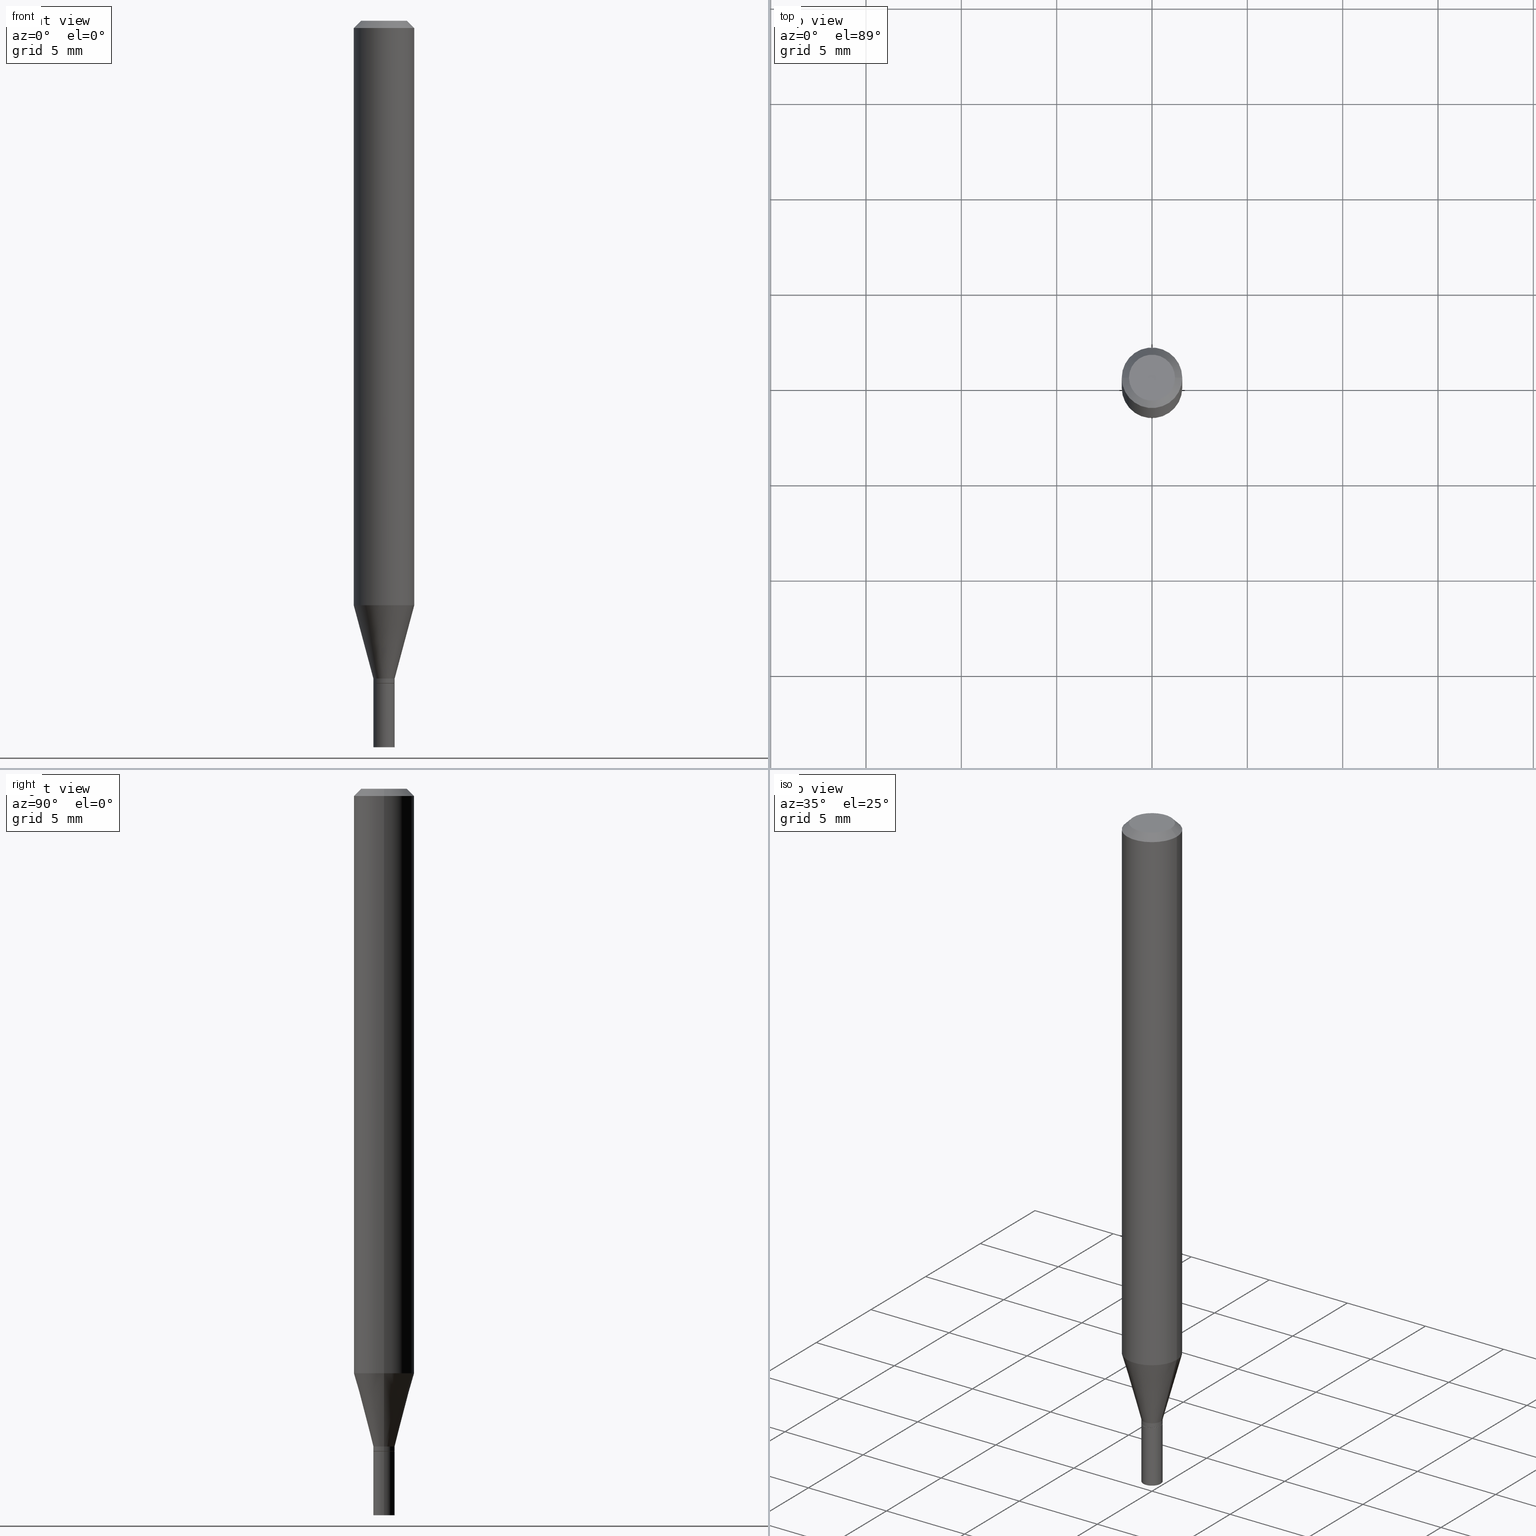
[diagram: canonical four-view strip — front | top / right | iso, engineering-drawing reading convention]
A machine part, canonical four-view strip (front | top / right | iso — engineering-drawing reading convention). The complete STEP part file that produces these views, byte-faithful:
ISO-10303-21;
HEADER;
FILE_DESCRIPTION (( 'STEP AP203' ),
    '1' );
FILE_NAME ('01195.STEP',
    '2024-03-19T23:53:40',
    ( '' ),
    ( '' ),
    'SwSTEP 2.0',
    'SolidWorks 2023',
    '' );
FILE_SCHEMA (( 'CONFIG_CONTROL_DESIGN' ));
ENDSEC;

DATA;
#1 = DIRECTION ( 'NONE',  ( 1.000000000000000000, -6.982962677686266711E-15, 4.876176775795935793E-29 ) ) ;
#2 = FACE_OUTER_BOUND ( 'NONE', #452, .T. ) ;
#3 = ADVANCED_FACE ( 'NONE', ( #244 ), #369, .T. ) ;
#4 = ADVANCED_FACE ( 'NONE', ( #29 ), #319, .F. ) ;
#5 = CARTESIAN_POINT ( 'NONE',  ( 3.345401326861266963E-29, -4.776346471537423880E-15, -1.368000000000000105 ) ) ;
#6 = VECTOR ( 'NONE', #28, 39.37007874015748143 ) ;
#7 = FACE_OUTER_BOUND ( 'NONE', #313, .T. ) ;
#8 = CONICAL_SURFACE ( 'NONE', #272, 0.02149999999999999481, 0.7853981633974739252 ) ;
#9 = APPROVAL_PERSON_ORGANIZATION ( #53, #327, #300 ) ;
#10 = CARTESIAN_POINT ( 'NONE',  ( 0.06250000000000000000, -4.888073874380388472E-16, -0.01499999999999999944 ) ) ;
#11 = ORIENTED_EDGE ( 'NONE', *, *, #126, .F. ) ;
#12 = EDGE_CURVE ( 'NONE', #271, #161, #192, .T. ) ;
#13 = CARTESIAN_POINT ( 'NONE',  ( 1.536251789091312887E-16, 0.02199999999999522129, -1.368000000000000105 ) ) ;
#14 = CALENDAR_DATE ( 2024, 19, 3 ) ;
#15 =( NAMED_UNIT ( * ) SI_UNIT ( $, .STERADIAN. ) SOLID_ANGLE_UNIT ( ) );
#16 = AXIS2_PLACEMENT_3D ( 'NONE', #71, #222, #46 ) ;
#17 = ORIENTED_EDGE ( 'NONE', *, *, #179, .T. ) ;
#18 = CC_DESIGN_APPROVAL ( #327, ( #21 ) ) ;
#19 = EDGE_LOOP ( 'NONE', ( #68, #251, #372, #337 ) ) ;
#20 = APPLICATION_CONTEXT ( 'configuration controlled 3d designs of mechanical parts and assemblies' ) ;
#21 = PRODUCT_DEFINITION ( 'UNKNOWN', '', #165, #257 ) ;
#22 = EDGE_LOOP ( 'NONE', ( #368, #181, #321, #311 ) ) ;
#23 =( CONVERSION_BASED_UNIT ( 'INCH', #270 ) LENGTH_UNIT ( ) NAMED_UNIT ( #188 ) );
#24 = CARTESIAN_POINT ( 'NONE',  ( 0.02149999999999999481, -4.926480169107677920E-15, -1.368000000000000105 ) ) ;
#25 =( LENGTH_UNIT ( ) NAMED_UNIT ( * ) SI_UNIT ( $, .METRE. ) );
#26 = DIRECTION ( 'NONE',  ( -2.445468806185136877E-29, 3.491481338843145188E-15, 1.000000000000000000 ) ) ;
#27 = EDGE_CURVE ( 'NONE', #249, #73, #166, .T. ) ;
#28 = DIRECTION ( 'NONE',  ( -2.445468806185136877E-29, 3.491481338843145188E-15, 1.000000000000000000 ) ) ;
#29 = FACE_OUTER_BOUND ( 'NONE', #446, .T. ) ;
#30 = DIRECTION ( 'NONE',  ( 1.000000000000000000, -6.982962677686270655E-15, 0.000000000000000000 ) ) ;
#31 = CYLINDRICAL_SURFACE ( 'NONE', #394, 0.02199999999999992240 ) ;
#32 = CARTESIAN_POINT ( 'NONE',  ( 3.320946638799415978E-29, -4.741431658148991442E-15, -1.358000000000000096 ) ) ;
#33 = DIRECTION ( 'NONE',  ( -2.445468806185136597E-29, 3.491481338843145583E-15, 1.000000000000000000 ) ) ;
#34 = VECTOR ( 'NONE', #167, 39.37007874015748143 ) ;
#35 = CC_DESIGN_APPROVAL ( #254, ( #165 ) ) ;
#36 = DIRECTION ( 'NONE',  ( 1.000000000000000000, -6.982962677686269866E-15, 0.000000000000000000 ) ) ;
#37 = EDGE_LOOP ( 'NONE', ( #147, #80, #215, #418 ) ) ;
#38 = EDGE_CURVE ( 'NONE', #217, #73, #295, .T. ) ;
#39 = DIRECTION ( 'NONE',  ( -2.445468806185136597E-29, 3.491481338843145583E-15, 1.000000000000000000 ) ) ;
#40 = CYLINDRICAL_SURFACE ( 'NONE', #89, 0.06250000000000000000 ) ;
#41 = EDGE_LOOP ( 'NONE', ( #130, #391, #304, #65 ) ) ;
#42 = ORIENTED_EDGE ( 'NONE', *, *, #38, .F. ) ;
#43 = AXIS2_PLACEMENT_3D ( 'NONE', #396, #78, #88 ) ;
#44 = CARTESIAN_POINT ( 'NONE',  ( 3.345401326861266963E-29, -4.776346471537423880E-15, -1.368000000000000105 ) ) ;
#45 = PERSON_AND_ORGANIZATION_ROLE ( 'design_owner' ) ;
#46 = DIRECTION ( 'NONE',  ( 1.000000000000000000, -6.982962677686245411E-15, 0.000000000000000000 ) ) ;
#47 = EDGE_CURVE ( 'NONE', #402, #105, #305, .T. ) ;
#48 = AXIS2_PLACEMENT_3D ( 'NONE', #32, #210, #350 ) ;
#49 = AXIS2_PLACEMENT_3D ( 'NONE', #61, #213, #36 ) ;
#50 = FACE_OUTER_BOUND ( 'NONE', #410, .T. ) ;
#51 = LOCAL_TIME ( 19, 53, 40.00000000000000000, #263 ) ;
#52 = ORIENTED_EDGE ( 'NONE', *, *, #183, .T. ) ;
#53 = PERSON_AND_ORGANIZATION ( #404, #108 ) ;
#54 = ORIENTED_EDGE ( 'NONE', *, *, #430, .T. ) ;
#55 = DIRECTION ( 'NONE',  ( -2.445468806185136597E-29, 3.491481338843145583E-15, 1.000000000000000000 ) ) ;
#56 = AXIS2_PLACEMENT_3D ( 'NONE', #287, #144, #432 ) ;
#57 = CONICAL_SURFACE ( 'NONE', #113, 0.06250000000000000000, 0.7853981633974439491 ) ;
#58 = EDGE_LOOP ( 'NONE', ( #198, #310, #156, #346 ) ) ;
#59 = VECTOR ( 'NONE', #182, 39.37007874015748143 ) ;
#60 = LINE ( 'NONE', #347, #236 ) ;
#61 = CARTESIAN_POINT ( 'NONE',  ( 3.320946638799415978E-29, -4.741431658148991442E-15, -1.358000000000000096 ) ) ;
#62 = CARTESIAN_POINT ( 'NONE',  ( -0.06250000000000000000, -3.769611825414159666E-15, -1.206851942293460711 ) ) ;
#63 = CARTESIAN_POINT ( 'NONE',  ( -0.02199999999999992240, -4.585112256281770051E-15, -1.358000000000000096 ) ) ;
#64 = CARTESIAN_POINT ( 'NONE',  ( 3.316907271900976096E-16, 0.04749999999999999362, -9.994755555137580731E-17 ) ) ;
#65 = ORIENTED_EDGE ( 'NONE', *, *, #112, .F. ) ;
#66 = DIRECTION ( 'NONE',  ( 0.7071067811865444641, -7.319954787623245001E-15, -0.7071067811865505703 ) ) ;
#67 = CARTESIAN_POINT ( 'NONE',  ( 0.000000000000000000, 0.000000000000000000, 0.000000000000000000 ) ) ;
#68 = ORIENTED_EDGE ( 'NONE', *, *, #196, .F. ) ;
#69 = CC_DESIGN_PERSON_AND_ORGANIZATION_ASSIGNMENT ( #116, #256, ( #21 ) ) ;
#70 = CIRCLE ( 'NONE', #306, 0.06250000000000000000 ) ;
#71 = CARTESIAN_POINT ( 'NONE',  ( 3.345401326861266963E-29, -4.776346471537423880E-15, -1.368000000000000105 ) ) ;
#72 = CARTESIAN_POINT ( 'NONE',  ( -0.02199999999999992240, 1.563194018672214895E-16, -1.082165719856075386E-30 ) ) ;
#73 = VERTEX_POINT ( 'NONE', #417 ) ;
#74 = CARTESIAN_POINT ( 'NONE',  ( 0.04749999999999999362, -4.035134999187576158E-16, 1.317956160873497667E-16 ) ) ;
#75 = CIRCLE ( 'NONE', #389, 0.02199999999999992240 ) ;
#76 = AXIS2_PLACEMENT_3D ( 'NONE', #44, #194, #157 ) ;
#77 = APPROVAL_DATE_TIME ( #393, #254 ) ;
#78 = DIRECTION ( 'NONE',  ( -2.445468806185136597E-29, 3.491481338843145583E-15, 1.000000000000000000 ) ) ;
#79 = ADVANCED_FACE ( 'NONE', ( #349 ), #250, .F. ) ;
#80 = ORIENTED_EDGE ( 'NONE', *, *, #196, .T. ) ;
#81 = CALENDAR_DATE ( 2024, 19, 3 ) ;
#82 = CARTESIAN_POINT ( 'NONE',  ( 0.02199999999999992240, -4.895056837058089278E-15, -1.358000000000000096 ) ) ;
#83 = ORIENTED_EDGE ( 'NONE', *, *, #98, .F. ) ;
#84 = ORIENTED_EDGE ( 'NONE', *, *, #228, .F. ) ;
#85 = APPLICATION_PROTOCOL_DEFINITION ( 'international standard', 'config_control_design', 1994, #20 ) ;
#86 = DIRECTION ( 'NONE',  ( 1.000000000000000000, -6.982962677686265922E-15, 4.876176775795936353E-29 ) ) ;
#87 = CARTESIAN_POINT ( 'NONE',  ( -0.04749999999999999362, 3.578768372314212971E-16, 1.317956160873447624E-16 ) ) ;
#88 = DIRECTION ( 'NONE',  ( 1.000000000000000000, -6.982962677686266711E-15, 0.000000000000000000 ) ) ;
#89 = AXIS2_PLACEMENT_3D ( 'NONE', #67, #317, #1 ) ;
#90 = EDGE_CURVE ( 'NONE', #217, #428, #142, .T. ) ;
#91 = CC_DESIGN_DATE_AND_TIME_ASSIGNMENT ( #232, #191, ( #434 ) ) ;
#92 = ORIENTED_EDGE ( 'NONE', *, *, #407, .F. ) ;
#93 = LINE ( 'NONE', #171, #119 ) ;
#94 = AXIS2_PLACEMENT_3D ( 'NONE', #252, #117, #86 ) ;
#95 = ORIENTED_EDGE ( 'NONE', *, *, #47, .F. ) ;
#96 = DIRECTION ( 'NONE',  ( -2.438088387897960049E-29, 3.491481338843145188E-15, 1.000000000000000000 ) ) ;
#97 = CARTESIAN_POINT ( 'NONE',  ( 0.02199999999999992240, -4.928225909777099423E-15, -1.367500000000000160 ) ) ;
#98 = EDGE_CURVE ( 'NONE', #230, #443, #93, .T. ) ;
#99 = ORIENTED_EDGE ( 'NONE', *, *, #436, .T. ) ;
#100 = DIRECTION ( 'NONE',  ( -0.7071067811865656694, 7.493145998870420424E-15, 0.7071067811865294761 ) ) ;
#101 = CARTESIAN_POINT ( 'NONE',  ( -3.223020679335594837E-45, 4.601619341103081537E-31, 1.317956160873471783E-16 ) ) ;
#102 = DIRECTION ( 'NONE',  ( -0.2588190451025213501, 5.211531920934551042E-15, 0.9659258262890682012 ) ) ;
#103 = DIRECTION ( 'NONE',  ( 0.000000000000000000, 0.000000000000000000, 1.000000000000000000 ) ) ;
#104 = ADVANCED_FACE ( 'NONE', ( #106 ), #31, .T. ) ;
#105 = VERTEX_POINT ( 'NONE', #345 ) ;
#106 = FACE_OUTER_BOUND ( 'NONE', #19, .T. ) ;
#107 = CONICAL_SURFACE ( 'NONE', #49, 0.02199999999999992240, 0.2617993877991500740 ) ;
#108 = ORGANIZATION ( 'UNSPECIFIED', 'UNSPECIFIED', '' ) ;
#109 = CARTESIAN_POINT ( 'NONE',  ( 3.320946638799415978E-29, -4.741431658148991442E-15, -1.358000000000000096 ) ) ;
#110 = ORIENTED_EDGE ( 'NONE', *, *, #336, .F. ) ;
#111 = ADVANCED_FACE ( 'NONE', ( #322 ), #174, .T. ) ;
#112 = EDGE_CURVE ( 'NONE', #264, #443, #277, .T. ) ;
#113 = AXIS2_PLACEMENT_3D ( 'NONE', #200, #338, #240 ) ;
#114 = LOCAL_TIME ( 19, 53, 40.00000000000000000, #267 ) ;
#115 = ORIENTED_EDGE ( 'NONE', *, *, #12, .T. ) ;
#116 = PERSON_AND_ORGANIZATION ( #404, #108 ) ;
#117 = DIRECTION ( 'NONE',  ( -2.445468806185136597E-29, 3.491481338843145583E-15, 1.000000000000000000 ) ) ;
#118 = ORIENTED_EDGE ( 'NONE', *, *, #27, .T. ) ;
#119 = VECTOR ( 'NONE', #129, 39.37007874015748143 ) ;
#120 = DIRECTION ( 'NONE',  ( 1.000000000000000000, -6.982962677686265922E-15, 4.876176775795936353E-29 ) ) ;
#121 = ORIENTED_EDGE ( 'NONE', *, *, #150, .T. ) ;
#122 = ORIENTED_EDGE ( 'NONE', *, *, #407, .T. ) ;
#123 = ADVANCED_FACE ( 'NONE', ( #286 ), #40, .T. ) ;
#124 = VECTOR ( 'NONE', #435, 39.37007874015748143 ) ;
#125 = ADVANCED_BREP_SHAPE_REPRESENTATION ( '01195', ( #456, #453, #278 ), #334 ) ;
#126 = EDGE_CURVE ( 'NONE', #195, #294, #333, .T. ) ;
#127 = EDGE_LOOP ( 'NONE', ( #382, #54, #11, #275 ) ) ;
#128 = FACE_OUTER_BOUND ( 'NONE', #186, .T. ) ;
#129 = DIRECTION ( 'NONE',  ( -2.445468806185136877E-29, 3.491481338843145188E-15, 1.000000000000000000 ) ) ;
#130 = ORIENTED_EDGE ( 'NONE', *, *, #183, .F. ) ;
#131 = LINE ( 'NONE', #24, #34 ) ;
#132 = CARTESIAN_POINT ( 'NONE',  ( 3.668203209277705088E-31, -5.237222008264718399E-17, -0.01499999999999999944 ) ) ;
#133 = VECTOR ( 'NONE', #169, 39.37007874015748143 ) ;
#134 = CC_DESIGN_SECURITY_CLASSIFICATION ( #434, ( #165 ) ) ;
#135 = VERTEX_POINT ( 'NONE', #288 ) ;
#136 = CARTESIAN_POINT ( 'NONE',  ( 3.344178592458174722E-29, -4.774600730868002376E-15, -1.367500000000000160 ) ) ;
#137 = ADVANCED_FACE ( 'NONE', ( #385 ), #107, .T. ) ;
#138 = PERSON_AND_ORGANIZATION_ROLE ( 'design_supplier' ) ;
#139 = DIRECTION ( 'NONE',  ( -2.445468806185136597E-29, 3.491481338843145583E-15, 1.000000000000000000 ) ) ;
#140 = ORIENTED_EDGE ( 'NONE', *, *, #145, .T. ) ;
#141 = FACE_OUTER_BOUND ( 'NONE', #221, .T. ) ;
#142 = LINE ( 'NONE', #352, #6 ) ;
#143 = PRODUCT ( '01195', '01195', '', ( #212 ) ) ;
#144 = DIRECTION ( 'NONE',  ( -2.438088387897960049E-29, 3.491481338843145188E-15, 1.000000000000000000 ) ) ;
#145 = EDGE_CURVE ( 'NONE', #402, #195, #178, .T. ) ;
#146 = CLOSED_SHELL ( 'NONE', ( #262, #4, #190, #449 ) ) ;
#147 = ORIENTED_EDGE ( 'NONE', *, *, #38, .T. ) ;
#148 = LINE ( 'NONE', #400, #59 ) ;
#149 = VECTOR ( 'NONE', #357, 39.37007874015748143 ) ;
#150 = EDGE_CURVE ( 'NONE', #428, #135, #464, .T. ) ;
#151 = FACE_OUTER_BOUND ( 'NONE', #355, .T. ) ;
#152 = PLANE ( 'NONE',  #307 ) ;
#153 = DATE_AND_TIME ( #14, #258 ) ;
#154 = PRODUCT_DEFINITION_SHAPE ( 'NONE', 'NONE',  #21 ) ;
#155 = APPROVAL_STATUS ( 'not_yet_approved' ) ;
#156 = ORIENTED_EDGE ( 'NONE', *, *, #205, .T. ) ;
#157 = DIRECTION ( 'NONE',  ( 1.000000000000000000, -6.982962677686266711E-15, 0.000000000000000000 ) ) ;
#158 = CONICAL_SURFACE ( 'NONE', #376, 0.02149999999999999481, 0.7853981633974739252 ) ;
#159 = ORIENTED_EDGE ( 'NONE', *, *, #218, .T. ) ;
#160 = DIRECTION ( 'NONE',  ( 1.000000000000000000, -6.982962677686269866E-15, 0.000000000000000000 ) ) ;
#161 = VERTEX_POINT ( 'NONE', #74 ) ;
#162 = DIRECTION ( 'NONE',  ( 1.000000000000000000, -6.982962677686269866E-15, 0.000000000000000000 ) ) ;
#163 = CC_DESIGN_DATE_AND_TIME_ASSIGNMENT ( #153, #399, ( #21 ) ) ;
#164 = CIRCLE ( 'NONE', #433, 0.04749999999999999362 ) ;
#165 = PRODUCT_DEFINITION_FORMATION_WITH_SPECIFIED_SOURCE ( 'ANY', '', #143, .NOT_KNOWN. ) ;
#166 = LINE ( 'NONE', #168, #235 ) ;
#167 = DIRECTION ( 'NONE',  ( 0.7071067811865656694, -2.468850131082446387E-15, 0.7071067811865294761 ) ) ;
#168 = CARTESIAN_POINT ( 'NONE',  ( -0.02149999999999999481, -4.623579783349001810E-15, -1.368000000000000105 ) ) ;
#169 = DIRECTION ( 'NONE',  ( -0.7071067811865444641, 2.468850131082224717E-15, -0.7071067811865505703 ) ) ;
#170 = CARTESIAN_POINT ( 'NONE',  ( 0.000000000000000000, 0.000000000000000000, 0.000000000000000000 ) ) ;
#171 = CARTESIAN_POINT ( 'NONE',  ( 0.06250000000000000000, -4.364351673553916694E-16, 3.047610484872459871E-30 ) ) ;
#172 = DIRECTION ( 'NONE',  ( -2.445468806185136597E-29, 3.491481338843145583E-15, 1.000000000000000000 ) ) ;
#173 = APPROVAL ( #155, 'UNSPECIFIED' ) ;
#174 = CYLINDRICAL_SURFACE ( 'NONE', #441, 0.02199999999999992240 ) ;
#175 = AXIS2_PLACEMENT_3D ( 'NONE', #5, #139, #354 ) ;
#176 = EDGE_CURVE ( 'NONE', #294, #195, #255, .T. ) ;
#177 = CARTESIAN_POINT ( 'NONE',  ( 3.668203209277705088E-31, -5.237222008264718399E-17, -0.01499999999999999944 ) ) ;
#178 = LINE ( 'NONE', #431, #124 ) ;
#179 = EDGE_CURVE ( 'NONE', #105, #402, #448, .T. ) ;
#180 = DIRECTION ( 'NONE',  ( 1.000000000000000000, -6.982962677686266711E-15, 0.000000000000000000 ) ) ;
#181 = ORIENTED_EDGE ( 'NONE', *, *, #228, .T. ) ;
#182 = DIRECTION ( 'NONE',  ( -2.445468806185136877E-29, 3.491481338843145188E-15, 1.000000000000000000 ) ) ;
#183 = EDGE_CURVE ( 'NONE', #386, #264, #148, .T. ) ;
#184 = DIRECTION ( 'NONE',  ( -1.000000000000000000, 6.982962677686265922E-15, -4.876176775795935793E-29 ) ) ;
#185 = CIRCLE ( 'NONE', #363, 0.06250000000000000000 ) ;
#186 = EDGE_LOOP ( 'NONE', ( #99, #118, #42, #332 ) ) ;
#187 = DIRECTION ( 'NONE',  ( 1.000000000000000000, -6.982962677686245411E-15, 0.000000000000000000 ) ) ;
#188 = DIMENSIONAL_EXPONENTS ( 1.000000000000000000, 0.000000000000000000, 0.000000000000000000, 0.000000000000000000, 0.000000000000000000, 0.000000000000000000, 0.000000000000000000 ) ;
#189 = DIRECTION ( 'NONE',  ( 2.438088387897960049E-29, -3.491481338843145188E-15, -1.000000000000000000 ) ) ;
#190 = ADVANCED_FACE ( 'NONE', ( #151 ), #216, .T. ) ;
#191 = DATE_TIME_ROLE ( 'classification_date' ) ;
#192 = CIRCLE ( 'NONE', #439, 0.04749999999999999362 ) ;
#193 = CIRCLE ( 'NONE', #301, 0.06250000000000000000 ) ;
#194 = DIRECTION ( 'NONE',  ( -2.445468806185136597E-29, 3.491481338843145583E-15, 1.000000000000000000 ) ) ;
#195 = VERTEX_POINT ( 'NONE', #269 ) ;
#196 = EDGE_CURVE ( 'NONE', #73, #135, #239, .T. ) ;
#197 = ADVANCED_FACE ( 'NONE', ( #128 ), #158, .T. ) ;
#198 = ORIENTED_EDGE ( 'NONE', *, *, #374, .F. ) ;
#199 = DIRECTION ( 'NONE',  ( 1.000000000000000000, -6.982962677686269866E-15, 0.000000000000000000 ) ) ;
#200 = CARTESIAN_POINT ( 'NONE',  ( 3.668203209277705088E-31, -5.237222008264718399E-17, -0.01499999999999999944 ) ) ;
#201 = PRODUCT_RELATED_PRODUCT_CATEGORY ( 'detail', '', ( #143 ) ) ;
#202 = CARTESIAN_POINT ( 'NONE',  ( -0.02199999999999999872, -4.850464838033848848E-15, -1.368000000000000105 ) ) ;
#203 = AXIS2_PLACEMENT_3D ( 'NONE', #361, #253, #445 ) ;
#204 = CARTESIAN_POINT ( 'NONE',  ( -0.06250000000000000000, 3.840629472727444916E-16, -0.01499999999999999944 ) ) ;
#205 = EDGE_CURVE ( 'NONE', #271, #264, #465, .T. ) ;
#206 = DIRECTION ( 'NONE',  ( 1.000000000000000000, -6.982962677686266711E-15, 4.876176775795934672E-29 ) ) ;
#207 = ORIENTED_EDGE ( 'NONE', *, *, #436, .F. ) ;
#208 = CARTESIAN_POINT ( 'NONE',  ( 2.951318778562602676E-29, -4.213701035264222282E-15, -1.206851942293460711 ) ) ;
#209 = CARTESIAN_POINT ( 'NONE',  ( 0.000000000000000000, 0.000000000000000000, 0.000000000000000000 ) ) ;
#210 = DIRECTION ( 'NONE',  ( -2.445468806185136597E-29, 3.491481338843145583E-15, 1.000000000000000000 ) ) ;
#211 = CARTESIAN_POINT ( 'NONE',  ( 3.345401326861266963E-29, -4.776346471537423880E-15, -1.368000000000000105 ) ) ;
#212 = MECHANICAL_CONTEXT ( 'NONE', #411, 'mechanical' ) ;
#213 = DIRECTION ( 'NONE',  ( -2.445468806185136597E-29, 3.491481338843145583E-15, 1.000000000000000000 ) ) ;
#214 = VECTOR ( 'NONE', #66, 39.37007874015748143 ) ;
#215 = ORIENTED_EDGE ( 'NONE', *, *, #150, .F. ) ;
#216 = CYLINDRICAL_SURFACE ( 'NONE', #94, 0.02199999999999999872 ) ;
#217 = VERTEX_POINT ( 'NONE', #97 ) ;
#218 = EDGE_CURVE ( 'NONE', #135, #386, #280, .T. ) ;
#219 = DIRECTION ( 'NONE',  ( 1.000000000000000000, -6.982962677686266711E-15, 0.000000000000000000 ) ) ;
#220 = CARTESIAN_POINT ( 'NONE',  ( 3.668203209277704895E-29, -5.237222008264718177E-15, -1.500000000000000222 ) ) ;
#221 = EDGE_LOOP ( 'NONE', ( #207, #84 ) ) ;
#222 = DIRECTION ( 'NONE',  ( -2.445468806185136597E-29, 3.491481338843145583E-15, 1.000000000000000000 ) ) ;
#223 = CYLINDRICAL_SURFACE ( 'NONE', #203, 0.06250000000000000000 ) ;
#224 = PERSON_AND_ORGANIZATION ( #404, #108 ) ;
#225 = COORDINATED_UNIVERSAL_TIME_OFFSET ( 5, 0, .BEHIND. ) ;
#226 = AXIS2_PLACEMENT_3D ( 'NONE', #211, #96, #380 ) ;
#227 = EDGE_CURVE ( 'NONE', #230, #386, #185, .T. ) ;
#228 = EDGE_CURVE ( 'NONE', #249, #454, #421, .T. ) ;
#229 = PERSON_AND_ORGANIZATION_ROLE ( 'classification_officer' ) ;
#230 = VERTEX_POINT ( 'NONE', #331 ) ;
#231 = CARTESIAN_POINT ( 'NONE',  ( 3.320946638799415978E-29, -4.741431658148991442E-15, -1.358000000000000096 ) ) ;
#232 = DATE_AND_TIME ( #403, #114 ) ;
#233 = ORIENTED_EDGE ( 'NONE', *, *, #179, .F. ) ;
#234 = CYLINDRICAL_SURFACE ( 'NONE', #323, 0.02199999999999999872 ) ;
#235 = VECTOR ( 'NONE', #100, 39.37007874015748143 ) ;
#236 = VECTOR ( 'NONE', #341, 39.37007874015747433 ) ;
#237 = APPROVAL_PERSON_ORGANIZATION ( #401, #173, #397 ) ;
#238 =( NAMED_UNIT ( * ) PLANE_ANGLE_UNIT ( ) SI_UNIT ( $, .RADIAN. ) );
#239 = LINE ( 'NONE', #72, #242 ) ;
#240 = DIRECTION ( 'NONE',  ( -1.000000000000000000, 6.982962677686266711E-15, 0.000000000000000000 ) ) ;
#241 = CC_DESIGN_PERSON_AND_ORGANIZATION_ASSIGNMENT ( #444, #45, ( #143 ) ) ;
#242 = VECTOR ( 'NONE', #26, 39.37007874015748143 ) ;
#243 = DIRECTION ( 'NONE',  ( -2.445468806185136597E-29, 3.491481338843145583E-15, 1.000000000000000000 ) ) ;
#244 = FACE_OUTER_BOUND ( 'NONE', #406, .T. ) ;
#245 = DIRECTION ( 'NONE',  ( -1.000000000000000000, 6.982962677686266711E-15, 0.000000000000000000 ) ) ;
#246 = CARTESIAN_POINT ( 'NONE',  ( 3.345401326861266963E-29, -4.776346471537423880E-15, -1.368000000000000105 ) ) ;
#247 = DIRECTION ( 'NONE',  ( -2.445468806185136597E-29, 3.491481338843145583E-15, 1.000000000000000000 ) ) ;
#248 = AXIS2_PLACEMENT_3D ( 'NONE', #132, #320, #180 ) ;
#249 = VERTEX_POINT ( 'NONE', #266 ) ;
#250 = PLANE ( 'NONE',  #315 ) ;
#251 = ORIENTED_EDGE ( 'NONE', *, *, #297, .T. ) ;
#252 = CARTESIAN_POINT ( 'NONE',  ( 0.000000000000000000, 0.000000000000000000, 0.000000000000000000 ) ) ;
#253 = DIRECTION ( 'NONE',  ( -2.445468806185136597E-29, 3.491481338843145583E-15, 1.000000000000000000 ) ) ;
#254 = APPROVAL ( #359, 'UNSPECIFIED' ) ;
#255 = CIRCLE ( 'NONE', #16, 0.02199999999999999872 ) ;
#256 = PERSON_AND_ORGANIZATION_ROLE ( 'creator' ) ;
#257 = DESIGN_CONTEXT ( 'detailed design', #20, 'design' ) ;
#258 = LOCAL_TIME ( 19, 53, 40.00000000000000000, #225 ) ;
#259 = DIRECTION ( 'NONE',  ( 1.000000000000000000, -6.982962677686270655E-15, 0.000000000000000000 ) ) ;
#260 = APPROVAL_DATE_TIME ( #330, #327 ) ;
#261 = ORIENTED_EDGE ( 'NONE', *, *, #227, .F. ) ;
#262 = ADVANCED_FACE ( 'NONE', ( #366 ), #234, .T. ) ;
#263 = COORDINATED_UNIVERSAL_TIME_OFFSET ( 5, 0, .BEHIND. ) ;
#264 = VERTEX_POINT ( 'NONE', #408 ) ;
#265 = ORIENTED_EDGE ( 'NONE', *, *, #398, .F. ) ;
#266 = CARTESIAN_POINT ( 'NONE',  ( -0.02149999999999999481, -4.620930556174890609E-15, -1.368000000000000105 ) ) ;
#267 = COORDINATED_UNIVERSAL_TIME_OFFSET ( 5, 0, .BEHIND. ) ;
#268 = ORIENTED_EDGE ( 'NONE', *, *, #176, .T. ) ;
#269 = CARTESIAN_POINT ( 'NONE',  ( 0.02199999999999999872, -4.929971650446520927E-15, -1.368000000000000105 ) ) ;
#270 = LENGTH_MEASURE_WITH_UNIT ( LENGTH_MEASURE( 0.02539999999999999897 ), #25 );
#271 = VERTEX_POINT ( 'NONE', #87 ) ;
#272 = AXIS2_PLACEMENT_3D ( 'NONE', #246, #172, #424 ) ;
#273 = DIRECTION ( 'NONE',  ( 1.000000000000000000, -6.982962677686266711E-15, 4.876176775795934672E-29 ) ) ;
#274 = EDGE_CURVE ( 'NONE', #135, #428, #75, .T. ) ;
#275 = ORIENTED_EDGE ( 'NONE', *, *, #145, .F. ) ;
#276 = CARTESIAN_POINT ( 'NONE',  ( 3.668203209277705088E-31, -5.237222008264718399E-17, -0.01499999999999999944 ) ) ;
#277 = CIRCLE ( 'NONE', #248, 0.06250000000000000000 ) ;
#278 = AXIS2_PLACEMENT_3D ( 'NONE', #170, #103, #416 ) ;
#279 = DIRECTION ( 'NONE',  ( 1.000000000000000000, -6.982962677686266711E-15, 0.000000000000000000 ) ) ;
#280 = LINE ( 'NONE', #63, #358 ) ;
#281 = PERSON_AND_ORGANIZATION_ROLE ( 'creator' ) ;
#282 = DIRECTION ( 'NONE',  ( -2.445468806185136597E-29, 3.491481338843145583E-15, 1.000000000000000000 ) ) ;
#283 = EDGE_LOOP ( 'NONE', ( #299, #451, #379, #265 ) ) ;
#284 = PLANE ( 'NONE',  #226 ) ;
#285 = CC_DESIGN_PERSON_AND_ORGANIZATION_ASSIGNMENT ( #466, #138, ( #165 ) ) ;
#286 = FACE_OUTER_BOUND ( 'NONE', #41, .T. ) ;
#287 = CARTESIAN_POINT ( 'NONE',  ( 3.584916967085606921E-29, -5.356492647442320375E-15, -1.500000000000000222 ) ) ;
#288 = CARTESIAN_POINT ( 'NONE',  ( -0.02199999999999992240, -4.177362040847964858E-15, -1.358000000000000096 ) ) ;
#289 = AXIS2_PLACEMENT_3D ( 'NONE', #109, #378, #160 ) ;
#290 = CARTESIAN_POINT ( 'NONE',  ( -3.223020679335594837E-45, 4.601619341103081537E-31, 1.317956160873471783E-16 ) ) ;
#291 = ADVANCED_FACE ( 'NONE', ( #335 ), #57, .T. ) ;
#292 = CALENDAR_DATE ( 2024, 19, 3 ) ;
#294 = VERTEX_POINT ( 'NONE', #202 ) ;
#293 = CARTESIAN_POINT ( 'NONE',  ( 0.02149999999999999481, -4.926480169107677920E-15, -1.368000000000000105 ) ) ;
#295 = CIRCLE ( 'NONE', #455, 0.02199999999999992240 ) ;
#296 = DIRECTION ( 'NONE',  ( -2.445468806185136597E-29, 3.491481338843145583E-15, 1.000000000000000000 ) ) ;
#297 = EDGE_CURVE ( 'NONE', #73, #217, #405, .T. ) ;
#298 = LINE ( 'NONE', #365, #149 ) ;
#299 = ORIENTED_EDGE ( 'NONE', *, *, #218, .F. ) ;
#300 = APPROVAL_ROLE ( '' ) ;
#301 = AXIS2_PLACEMENT_3D ( 'NONE', #177, #318, #279 ) ;
#302 = EDGE_LOOP ( 'NONE', ( #115, #122 ) ) ;
#303 = CC_DESIGN_PERSON_AND_ORGANIZATION_ASSIGNMENT ( #426, #229, ( #434 ) ) ;
#304 = ORIENTED_EDGE ( 'NONE', *, *, #98, .T. ) ;
#305 = CIRCLE ( 'NONE', #362, 0.02199999999999999872 ) ;
#306 = AXIS2_PLACEMENT_3D ( 'NONE', #208, #344, #30 ) ;
#307 = AXIS2_PLACEMENT_3D ( 'NONE', #13, #189, #438 ) ;
#308 = APPLICATION_PROTOCOL_DEFINITION ( 'international standard', 'config_control_design', 1994, #411 ) ;
#309 = EDGE_CURVE ( 'NONE', #443, #264, #193, .T. ) ;
#310 = ORIENTED_EDGE ( 'NONE', *, *, #12, .F. ) ;
#311 = ORIENTED_EDGE ( 'NONE', *, *, #297, .F. ) ;
#312 = DIRECTION ( 'NONE',  ( 2.438088387897960049E-29, -3.491481338843145188E-15, -1.000000000000000000 ) ) ;
#313 = EDGE_LOOP ( 'NONE', ( #339, #268 ) ) ;
#314 = CARTESIAN_POINT ( 'NONE',  ( 0.06250000000000000000, -4.811533449433679005E-16, -0.01499999999999999944 ) ) ;
#315 = AXIS2_PLACEMENT_3D ( 'NONE', #64, #312, #184 ) ;
#316 = PERSON_AND_ORGANIZATION ( #404, #108 ) ;
#317 = DIRECTION ( 'NONE',  ( -2.445468806185136597E-29, 3.491481338843145583E-15, 1.000000000000000000 ) ) ;
#318 = DIRECTION ( 'NONE',  ( -2.445468806185136597E-29, 3.491481338843145583E-15, 1.000000000000000000 ) ) ;
#319 = PLANE ( 'NONE',  #56 ) ;
#320 = DIRECTION ( 'NONE',  ( -2.445468806185136597E-29, 3.491481338843145583E-15, 1.000000000000000000 ) ) ;
#321 = ORIENTED_EDGE ( 'NONE', *, *, #340, .T. ) ;
#322 = FACE_OUTER_BOUND ( 'NONE', #37, .T. ) ;
#323 = AXIS2_PLACEMENT_3D ( 'NONE', #450, #371, #120 ) ;
#324 = CC_DESIGN_PERSON_AND_ORGANIZATION_ASSIGNMENT ( #316, #281, ( #165 ) ) ;
#325 = DATE_AND_TIME ( #81, #390 ) ;
#326 = APPROVAL_ROLE ( '' ) ;
#327 = APPROVAL ( #328, 'UNSPECIFIED' ) ;
#328 = APPROVAL_STATUS ( 'not_yet_approved' ) ;
#329 = ORIENTED_EDGE ( 'NONE', *, *, #430, .F. ) ;
#330 = DATE_AND_TIME ( #292, #51 ) ;
#331 = CARTESIAN_POINT ( 'NONE',  ( 0.06250000000000000000, -4.650136202619614741E-15, -1.206851942293460711 ) ) ;
#332 = ORIENTED_EDGE ( 'NONE', *, *, #340, .F. ) ;
#333 = CIRCLE ( 'NONE', #175, 0.02199999999999999872 ) ;
#334 =( GEOMETRIC_REPRESENTATION_CONTEXT ( 3 ) GLOBAL_UNCERTAINTY_ASSIGNED_CONTEXT ( ( #419 ) ) GLOBAL_UNIT_ASSIGNED_CONTEXT ( ( #23, #238, #15 ) ) REPRESENTATION_CONTEXT ( 'NONE', 'WORKASPACE' ) );
#335 = FACE_OUTER_BOUND ( 'NONE', #58, .T. ) ;
#336 = EDGE_CURVE ( 'NONE', #428, #230, #60, .T. ) ;
#337 = ORIENTED_EDGE ( 'NONE', *, *, #274, .F. ) ;
#338 = DIRECTION ( 'NONE',  ( 2.445468806185136597E-29, -3.491481338843145583E-15, -1.000000000000000000 ) ) ;
#339 = ORIENTED_EDGE ( 'NONE', *, *, #126, .T. ) ;
#340 = EDGE_CURVE ( 'NONE', #454, #217, #131, .T. ) ;
#341 = DIRECTION ( 'NONE',  ( 0.2588190451025213501, 1.565188264969621968E-15, 0.9659258262890682012 ) ) ;
#342 = AXIS2_PLACEMENT_3D ( 'NONE', #353, #296, #187 ) ;
#343 = DIRECTION ( 'NONE',  ( -2.445468806185136597E-29, 3.491481338843145583E-15, 1.000000000000000000 ) ) ;
#344 = DIRECTION ( 'NONE',  ( -2.445468806185136597E-29, 3.491481338843145583E-15, 1.000000000000000000 ) ) ;
#345 = CARTESIAN_POINT ( 'NONE',  ( -0.02199999999999999872, -4.850464838033848848E-15, -1.500000000000000222 ) ) ;
#346 = ORIENTED_EDGE ( 'NONE', *, *, #112, .T. ) ;
#347 = CARTESIAN_POINT ( 'NONE',  ( 0.02199999999999992240, -4.895056837058089278E-15, -1.358000000000000096 ) ) ;
#348 = SECURITY_CLASSIFICATION_LEVEL ( 'unclassified' ) ;
#349 = FACE_OUTER_BOUND ( 'NONE', #302, .T. ) ;
#350 = DIRECTION ( 'NONE',  ( 1.000000000000000000, -6.982962677686269866E-15, 0.000000000000000000 ) ) ;
#351 = DIRECTION ( 'NONE',  ( 1.000000000000000000, -6.982962677686267499E-15, 4.884662768193073002E-29 ) ) ;
#352 = CARTESIAN_POINT ( 'NONE',  ( 0.02199999999999992240, -1.536251789090973184E-16, 1.072758890675101902E-30 ) ) ;
#353 = CARTESIAN_POINT ( 'NONE',  ( 3.668203209277704895E-29, -5.237222008264718177E-15, -1.500000000000000222 ) ) ;
#354 = DIRECTION ( 'NONE',  ( 1.000000000000000000, -6.982962677686245411E-15, 0.000000000000000000 ) ) ;
#355 = EDGE_LOOP ( 'NONE', ( #329, #17, #140, #447 ) ) ;
#356 = ADVANCED_FACE ( 'NONE', ( #2 ), #413, .T. ) ;
#357 = DIRECTION ( 'NONE',  ( -2.445468806185136877E-29, 3.491481338843145188E-15, 1.000000000000000000 ) ) ;
#358 = VECTOR ( 'NONE', #102, 39.37007874015747433 ) ;
#359 = APPROVAL_STATUS ( 'not_yet_approved' ) ;
#360 = SHAPE_DEFINITION_REPRESENTATION ( #154, #125 ) ;
#361 = CARTESIAN_POINT ( 'NONE',  ( 0.000000000000000000, 0.000000000000000000, 0.000000000000000000 ) ) ;
#362 = AXIS2_PLACEMENT_3D ( 'NONE', #220, #282, #422 ) ;
#363 = AXIS2_PLACEMENT_3D ( 'NONE', #384, #392, #259 ) ;
#364 = APPROVAL_PERSON_ORGANIZATION ( #224, #254, #326 ) ;
#365 = CARTESIAN_POINT ( 'NONE',  ( -0.02199999999999999872, 1.563194018672220318E-16, -1.082165719856079240E-30 ) ) ;
#366 = FACE_OUTER_BOUND ( 'NONE', #127, .T. ) ;
#367 = COORDINATED_UNIVERSAL_TIME_OFFSET ( 5, 0, .BEHIND. ) ;
#368 = ORIENTED_EDGE ( 'NONE', *, *, #27, .F. ) ;
#369 = CONICAL_SURFACE ( 'NONE', #48, 0.02199999999999992240, 0.2617993877991500740 ) ;
#370 = AXIS2_PLACEMENT_3D ( 'NONE', #136, #460, #162 ) ;
#371 = DIRECTION ( 'NONE',  ( -2.445468806185136597E-29, 3.491481338843145583E-15, 1.000000000000000000 ) ) ;
#372 = ORIENTED_EDGE ( 'NONE', *, *, #90, .T. ) ;
#373 = ADVANCED_FACE ( 'NONE', ( #383 ), #8, .T. ) ;
#374 = EDGE_CURVE ( 'NONE', #161, #443, #420, .T. ) ;
#375 = ADVANCED_FACE ( 'NONE', ( #141 ), #284, .F. ) ;
#376 = AXIS2_PLACEMENT_3D ( 'NONE', #388, #39, #219 ) ;
#377 = CC_DESIGN_APPROVAL ( #173, ( #434 ) ) ;
#378 = DIRECTION ( 'NONE',  ( -2.445468806185136597E-29, 3.491481338843145583E-15, 1.000000000000000000 ) ) ;
#379 = ORIENTED_EDGE ( 'NONE', *, *, #336, .T. ) ;
#380 = DIRECTION ( 'NONE',  ( 1.000000000000000000, -6.982962677686265922E-15, 4.876176775795935793E-29 ) ) ;
#381 = DIRECTION ( 'NONE',  ( 1.000000000000000000, -6.982962677686269866E-15, 0.000000000000000000 ) ) ;
#382 = ORIENTED_EDGE ( 'NONE', *, *, #47, .T. ) ;
#383 = FACE_OUTER_BOUND ( 'NONE', #22, .T. ) ;
#384 = CARTESIAN_POINT ( 'NONE',  ( 2.951318778562602676E-29, -4.213701035264222282E-15, -1.206851942293460711 ) ) ;
#385 = FACE_OUTER_BOUND ( 'NONE', #283, .T. ) ;
#386 = VERTEX_POINT ( 'NONE', #62 ) ;
#387 = CLOSED_SHELL ( 'NONE', ( #111, #197, #356, #425, #3, #137, #123, #291, #79, #375, #373, #104 ) ) ;
#388 = CARTESIAN_POINT ( 'NONE',  ( 3.345401326861266963E-29, -4.776346471537423880E-15, -1.368000000000000105 ) ) ;
#389 = AXIS2_PLACEMENT_3D ( 'NONE', #231, #55, #199 ) ;
#390 = LOCAL_TIME ( 19, 53, 40.00000000000000000, #367 ) ;
#391 = ORIENTED_EDGE ( 'NONE', *, *, #398, .T. ) ;
#392 = DIRECTION ( 'NONE',  ( -2.445468806185136597E-29, 3.491481338843145583E-15, 1.000000000000000000 ) ) ;
#393 = DATE_AND_TIME ( #409, #395 ) ;
#394 = AXIS2_PLACEMENT_3D ( 'NONE', #209, #247, #273 ) ;
#395 = LOCAL_TIME ( 19, 53, 40.00000000000000000, #442 ) ;
#396 = CARTESIAN_POINT ( 'NONE',  ( 3.345401326861266963E-29, -4.776346471537423880E-15, -1.368000000000000105 ) ) ;
#397 = APPROVAL_ROLE ( '' ) ;
#398 = EDGE_CURVE ( 'NONE', #386, #230, #70, .T. ) ;
#399 = DATE_TIME_ROLE ( 'creation_date' ) ;
#400 = CARTESIAN_POINT ( 'NONE',  ( -0.06250000000000000000, 4.440892098500626162E-16, -3.074334431409316114E-30 ) ) ;
#401 = PERSON_AND_ORGANIZATION ( #404, #108 ) ;
#402 = VERTEX_POINT ( 'NONE', #463 ) ;
#403 = CALENDAR_DATE ( 2024, 19, 3 ) ;
#404 = PERSON ( 'UNSPECIFIED', 'UNSPECIFIED', 'UNSPECIFIED', ('UNSPECIFIED'), ('UNSPECIFIED'), ('UNSPECIFIED') ) ;
#405 = CIRCLE ( 'NONE', #370, 0.02199999999999992240 ) ;
#406 = EDGE_LOOP ( 'NONE', ( #121, #159, #261, #110 ) ) ;
#407 = EDGE_CURVE ( 'NONE', #161, #271, #164, .T. ) ;
#408 = CARTESIAN_POINT ( 'NONE',  ( -0.06250000000000000000, -1.688947417823372262E-15, -0.01499999999999999944 ) ) ;
#409 = CALENDAR_DATE ( 2024, 19, 3 ) ;
#410 = EDGE_LOOP ( 'NONE', ( #412, #52, #423, #83 ) ) ;
#411 = APPLICATION_CONTEXT ( 'configuration controlled 3d designs of mechanical parts and assemblies' ) ;
#412 = ORIENTED_EDGE ( 'NONE', *, *, #227, .T. ) ;
#413 = CONICAL_SURFACE ( 'NONE', #457, 0.06250000000000000000, 0.7853981633974439491 ) ;
#414 = CIRCLE ( 'NONE', #76, 0.02149999999999999481 ) ;
#415 = ORIENTED_EDGE ( 'NONE', *, *, #374, .T. ) ;
#416 = DIRECTION ( 'NONE',  ( 1.000000000000000000, 0.000000000000000000, 0.000000000000000000 ) ) ;
#417 = CARTESIAN_POINT ( 'NONE',  ( -0.02199999999999992240, -4.618281329000780985E-15, -1.367500000000000160 ) ) ;
#418 = ORIENTED_EDGE ( 'NONE', *, *, #90, .F. ) ;
#419 = UNCERTAINTY_MEASURE_WITH_UNIT (LENGTH_MEASURE( 1.000000000000000082E-05 ), #23, 'distance_accuracy_value', 'NONE');
#420 = LINE ( 'NONE', #314, #214 ) ;
#421 = CIRCLE ( 'NONE', #43, 0.02149999999999999481 ) ;
#422 = DIRECTION ( 'NONE',  ( 1.000000000000000000, -6.982962677686245411E-15, 0.000000000000000000 ) ) ;
#423 = ORIENTED_EDGE ( 'NONE', *, *, #309, .F. ) ;
#424 = DIRECTION ( 'NONE',  ( 1.000000000000000000, -6.982962677686266711E-15, 0.000000000000000000 ) ) ;
#425 = ADVANCED_FACE ( 'NONE', ( #50 ), #223, .T. ) ;
#426 = PERSON_AND_ORGANIZATION ( #404, #108 ) ;
#427 = CARTESIAN_POINT ( 'NONE',  ( 3.344178592458174722E-29, -4.774600730868002376E-15, -1.367500000000000160 ) ) ;
#428 = VERTEX_POINT ( 'NONE', #82 ) ;
#429 = DIRECTION ( 'NONE',  ( 1.000000000000000000, -6.982962677686267499E-15, 4.884662768193073002E-29 ) ) ;
#430 = EDGE_CURVE ( 'NONE', #105, #294, #298, .T. ) ;
#431 = CARTESIAN_POINT ( 'NONE',  ( 0.02199999999999999872, -1.536251789090978361E-16, 1.072758890675105930E-30 ) ) ;
#432 = DIRECTION ( 'NONE',  ( 1.000000000000000000, -6.982962677686265922E-15, 4.876176775795935793E-29 ) ) ;
#433 = AXIS2_PLACEMENT_3D ( 'NONE', #101, #33, #429 ) ;
#434 = SECURITY_CLASSIFICATION ( '', '', #348 ) ;
#435 = DIRECTION ( 'NONE',  ( -2.445468806185136877E-29, 3.491481338843145188E-15, 1.000000000000000000 ) ) ;
#436 = EDGE_CURVE ( 'NONE', #454, #249, #414, .T. ) ;
#437 = DIRECTION ( 'NONE',  ( -2.445468806185136597E-29, 3.491481338843145583E-15, 1.000000000000000000 ) ) ;
#438 = DIRECTION ( 'NONE',  ( -1.000000000000000000, 6.982962677686265922E-15, -4.876176775795935793E-29 ) ) ;
#439 = AXIS2_PLACEMENT_3D ( 'NONE', #290, #437, #351 ) ;
#440 = APPROVAL_DATE_TIME ( #325, #173 ) ;
#441 = AXIS2_PLACEMENT_3D ( 'NONE', #461, #243, #206 ) ;
#442 = COORDINATED_UNIVERSAL_TIME_OFFSET ( 5, 0, .BEHIND. ) ;
#443 = VERTEX_POINT ( 'NONE', #10 ) ;
#444 = PERSON_AND_ORGANIZATION ( #404, #108 ) ;
#445 = DIRECTION ( 'NONE',  ( 1.000000000000000000, -6.982962677686266711E-15, 4.876176775795935793E-29 ) ) ;
#446 = EDGE_LOOP ( 'NONE', ( #95, #233 ) ) ;
#447 = ORIENTED_EDGE ( 'NONE', *, *, #176, .F. ) ;
#448 = CIRCLE ( 'NONE', #342, 0.02199999999999999872 ) ;
#449 = ADVANCED_FACE ( 'NONE', ( #7 ), #152, .F. ) ;
#450 = CARTESIAN_POINT ( 'NONE',  ( 0.000000000000000000, 0.000000000000000000, 0.000000000000000000 ) ) ;
#451 = ORIENTED_EDGE ( 'NONE', *, *, #274, .T. ) ;
#452 = EDGE_LOOP ( 'NONE', ( #92, #415, #462, #459 ) ) ;
#453 = MANIFOLD_SOLID_BREP ( 'Body-Move/Copy2[2]', #387 ) ;
#454 = VERTEX_POINT ( 'NONE', #293 ) ;
#455 = AXIS2_PLACEMENT_3D ( 'NONE', #427, #343, #381 ) ;
#456 = MANIFOLD_SOLID_BREP ( 'Body-Move/Copy2[1]', #146 ) ;
#457 = AXIS2_PLACEMENT_3D ( 'NONE', #276, #458, #245 ) ;
#458 = DIRECTION ( 'NONE',  ( 2.445468806185136597E-29, -3.491481338843145583E-15, -1.000000000000000000 ) ) ;
#459 = ORIENTED_EDGE ( 'NONE', *, *, #205, .F. ) ;
#460 = DIRECTION ( 'NONE',  ( -2.445468806185136597E-29, 3.491481338843145583E-15, 1.000000000000000000 ) ) ;
#461 = CARTESIAN_POINT ( 'NONE',  ( 0.000000000000000000, 0.000000000000000000, 0.000000000000000000 ) ) ;
#462 = ORIENTED_EDGE ( 'NONE', *, *, #309, .T. ) ;
#463 = CARTESIAN_POINT ( 'NONE',  ( 0.02199999999999999872, -5.390847187173816013E-15, -1.500000000000000222 ) ) ;
#464 = CIRCLE ( 'NONE', #289, 0.02199999999999992240 ) ;
#465 = LINE ( 'NONE', #204, #133 ) ;
#466 = PERSON_AND_ORGANIZATION ( #404, #108 ) ;
ENDSEC;
END-ISO-10303-21;
